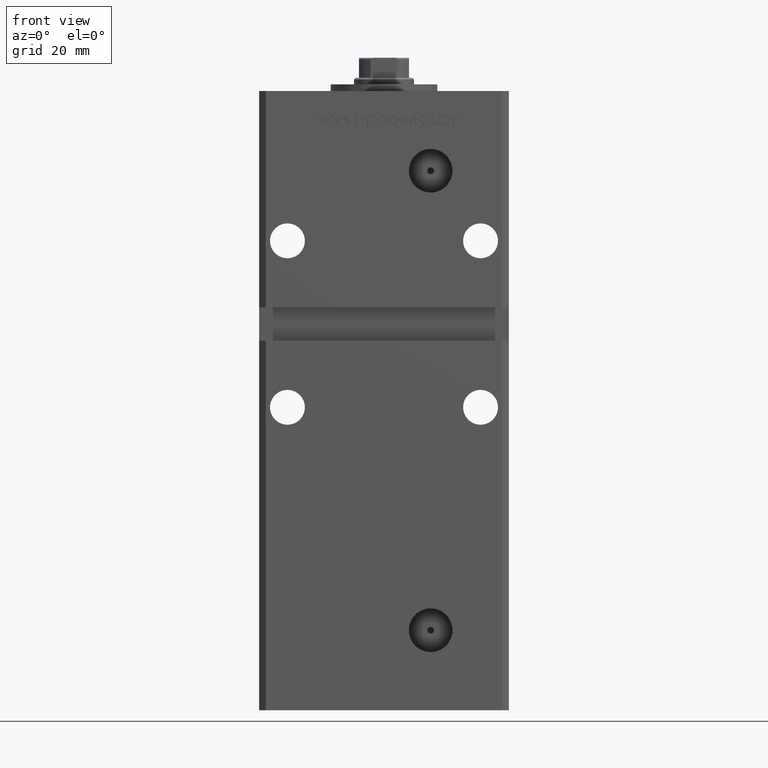
[diagram: clean part render]
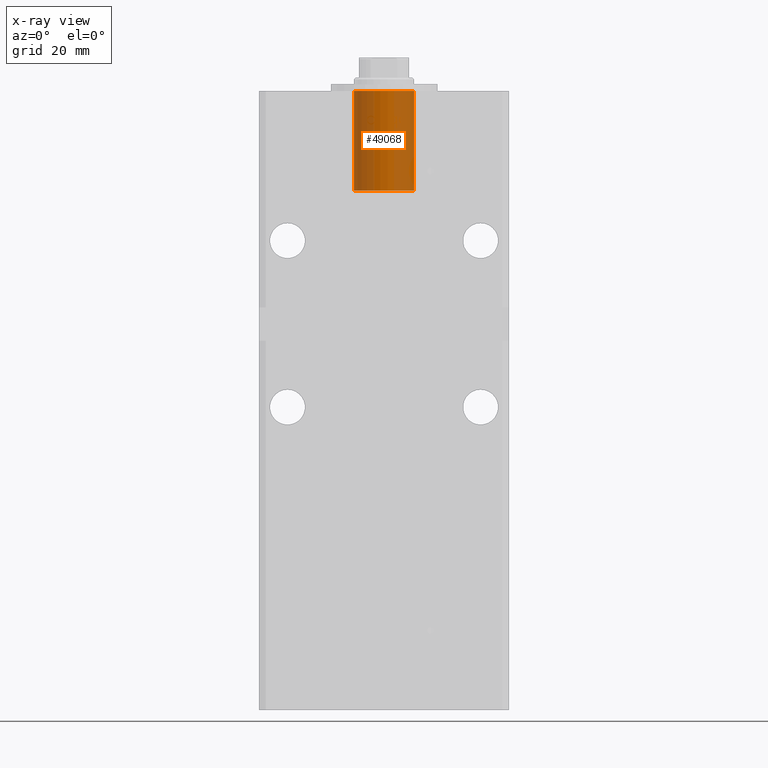
[diagram: x-ray — body ghosted, one internal face saturated and labeled with its STEP entity id]
A machine part, front view, then the same camera in x-ray: the body is ghosted and one INTERNAL B-rep face — a face not visible from any outside direction — is saturated and labeled: STEP entity #49068.
In plain terms, the highlighted cylindrical surface (edge-blend (fillet) strip) has radius 9 mm, axis along (0, 0, 1).
Its self-contained STEP definition (entity closure, byte-faithful):
#589 = CARTESIAN_POINT ( 'NONE',  ( -8.999999999999996447, -5.836711784674611255E-15, -30.00000000000000000 ) ) ;
#983 = VERTEX_POINT ( 'NONE', #21886 ) ;
#2005 = AXIS2_PLACEMENT_3D ( 'NONE', #52608, #3139, #52350 ) ;
#2084 = CIRCLE ( 'NONE', #34675, 8.999999999999996447 ) ;
#2896 = CIRCLE ( 'NONE', #2005, 8.999999999999996447 ) ;
#3139 = DIRECTION ( 'NONE',  ( 0.000000000000000000, 0.000000000000000000, 1.000000000000000000 ) ) ;
#8372 = ORIENTED_EDGE ( 'NONE', *, *, #20738, .T. ) ;
#12195 = DIRECTION ( 'NONE',  ( 1.000000000000000000, 0.000000000000000000, 0.000000000000000000 ) ) ;
#12938 = DIRECTION ( 'NONE',  ( -0.000000000000000000, -0.000000000000000000, 1.000000000000000000 ) ) ;
#13393 = LINE ( 'NONE', #30071, #20843 ) ;
#14305 = EDGE_CURVE ( 'NONE', #29715, #16203, #13393, .T. ) ;
#16203 = VERTEX_POINT ( 'NONE', #29620 ) ;
#18630 = AXIS2_PLACEMENT_3D ( 'NONE', #23520, #24304, #12195 ) ;
#19779 = ORIENTED_EDGE ( 'NONE', *, *, #47846, .F. ) ;
#20738 = EDGE_CURVE ( 'NONE', #983, #16203, #2084, .T. ) ;
#20843 = VECTOR ( 'NONE', #30326, 1000.000000000000000 ) ;
#21067 = VERTEX_POINT ( 'NONE', #21221 ) ;
#21221 = CARTESIAN_POINT ( 'NONE',  ( -8.999999999999996447, -5.836711784674611255E-15, -30.00000000000000000 ) ) ;
#21886 = CARTESIAN_POINT ( 'NONE',  ( -8.999999999999996447, -5.836711784674611255E-15, 0.000000000000000000 ) ) ;
#23520 = CARTESIAN_POINT ( 'NONE',  ( 0.000000000000000000, -6.938893903907228378E-15, -30.00000000000000000 ) ) ;
#24304 = DIRECTION ( 'NONE',  ( -0.000000000000000000, -0.000000000000000000, 1.000000000000000000 ) ) ;
#29073 = LINE ( 'NONE', #589, #34082 ) ;
#29620 = CARTESIAN_POINT ( 'NONE',  ( 8.999999999999996447, -6.938893903907228378E-15, 0.000000000000000000 ) ) ;
#29715 = VERTEX_POINT ( 'NONE', #49537 ) ;
#30071 = CARTESIAN_POINT ( 'NONE',  ( 8.999999999999996447, -6.938893903907228378E-15, -30.00000000000000000 ) ) ;
#30326 = DIRECTION ( 'NONE',  ( -0.000000000000000000, -0.000000000000000000, 1.000000000000000000 ) ) ;
#32314 = EDGE_LOOP ( 'NONE', ( #19779, #37380, #8372, #39699 ) ) ;
#34082 = VECTOR ( 'NONE', #12938, 1000.000000000000000 ) ;
#34675 = AXIS2_PLACEMENT_3D ( 'NONE', #48775, #36135, #44225 ) ;
#36135 = DIRECTION ( 'NONE',  ( 0.000000000000000000, 0.000000000000000000, 1.000000000000000000 ) ) ;
#37380 = ORIENTED_EDGE ( 'NONE', *, *, #49985, .T. ) ;
#39699 = ORIENTED_EDGE ( 'NONE', *, *, #14305, .F. ) ;
#44218 = CYLINDRICAL_SURFACE ( 'NONE', #18630, 8.999999999999996447 ) ;
#44225 = DIRECTION ( 'NONE',  ( 1.000000000000000000, 0.000000000000000000, 0.000000000000000000 ) ) ;
#47846 = EDGE_CURVE ( 'NONE', #21067, #29715, #2896, .T. ) ;
#48250 = FACE_OUTER_BOUND ( 'NONE', #32314, .T. ) ;
#48775 = CARTESIAN_POINT ( 'NONE',  ( 0.000000000000000000, -6.938893903907228378E-15, 0.000000000000000000 ) ) ;
#49068 = ADVANCED_FACE ( 'NONE', ( #48250 ), #44218, .F. ) ;
#49537 = CARTESIAN_POINT ( 'NONE',  ( 8.999999999999996447, -6.938893903907228378E-15, -30.00000000000000000 ) ) ;
#49985 = EDGE_CURVE ( 'NONE', #21067, #983, #29073, .T. ) ;
#52350 = DIRECTION ( 'NONE',  ( 1.000000000000000000, 0.000000000000000000, 0.000000000000000000 ) ) ;
#52608 = CARTESIAN_POINT ( 'NONE',  ( 0.000000000000000000, -6.938893903907228378E-15, -30.00000000000000000 ) ) ;